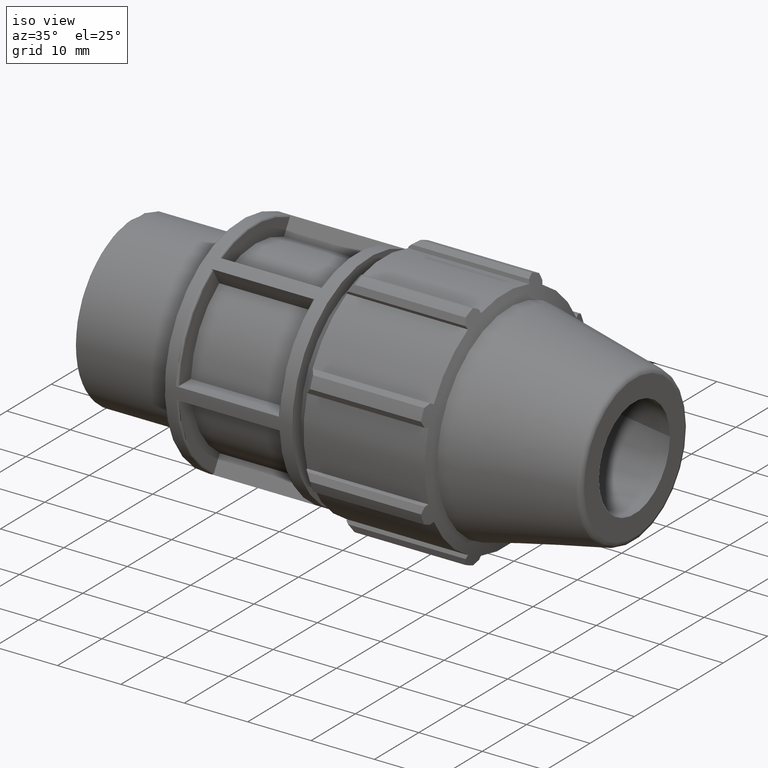
[diagram: clean part render]
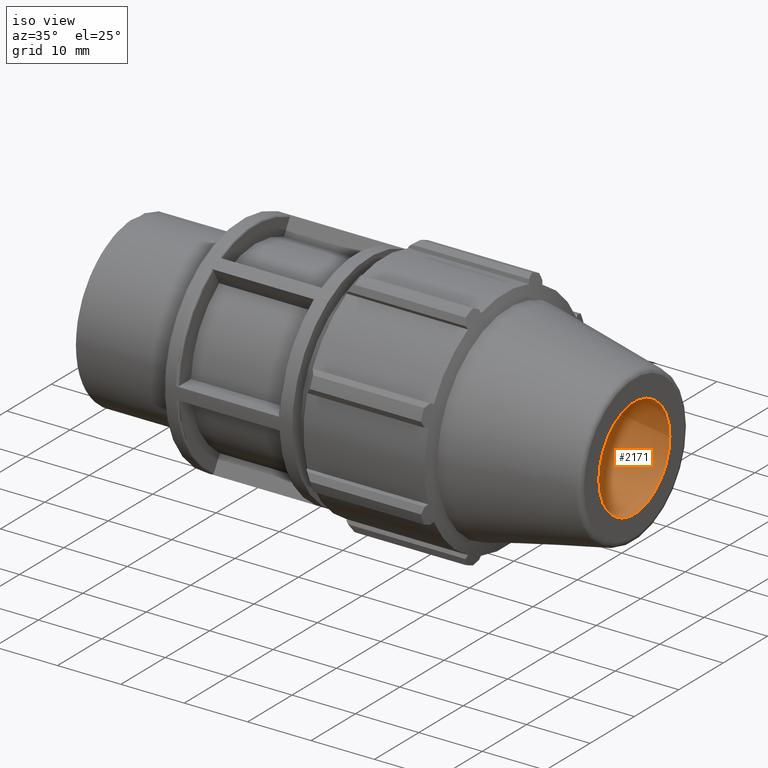
[diagram: same view with one face highlighted and labeled with its STEP entity id]
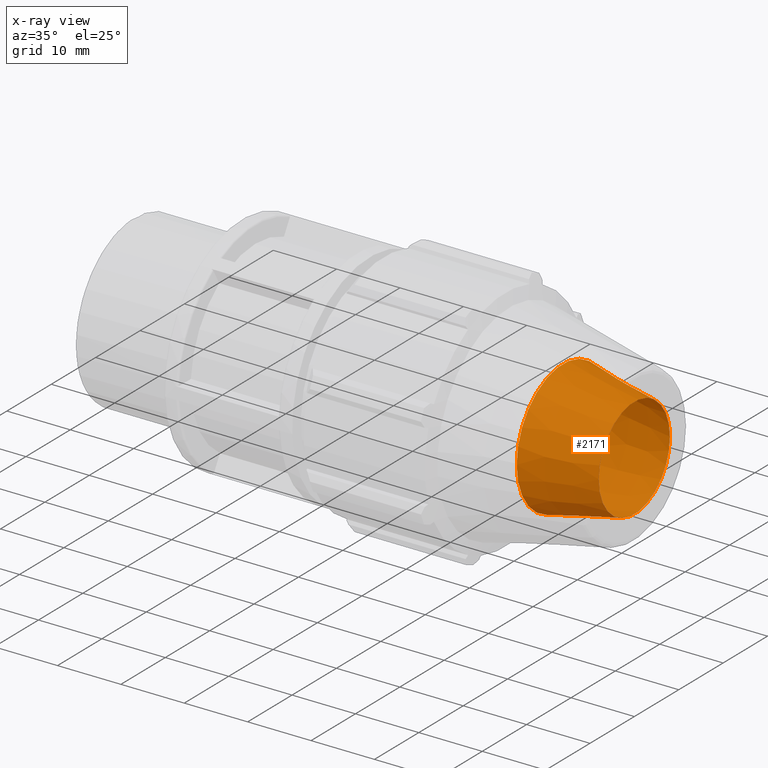
[diagram: x-ray of the same camera — body ghosted, the highlighted face saturated]
A machine part, iso view. The second image highlights one B-rep face of the part: STEP entity #2171.
The next image is the same camera in x-ray: the body ghosted, the highlighted face saturated — about 0% of this face is hidden behind the body in this view.
In plain terms, the highlighted conical surface has half-angle 12 deg.
Its self-contained STEP definition (entity closure, byte-faithful):
#57=CONICAL_SURFACE('',#2384,9.19942631228085,12.);
#484=FACE_BOUND('',#743,.T.);
#601=FACE_OUTER_BOUND('',#742,.T.);
#742=EDGE_LOOP('',(#1920));
#743=EDGE_LOOP('',(#1921));
#814=CIRCLE('',#2316,10.3988526245617);
#835=CIRCLE('',#2359,8.00000000000001);
#1008=VERTEX_POINT('',#3688);
#1037=VERTEX_POINT('',#3816);
#1268=EDGE_CURVE('',#1008,#1008,#814,.T.);
#1329=EDGE_CURVE('',#1037,#1037,#835,.T.);
#1920=ORIENTED_EDGE('',*,*,#1268,.F.);
#1921=ORIENTED_EDGE('',*,*,#1329,.T.);
#2171=ADVANCED_FACE('',(#601,#484),#57,.F.);
#2316=AXIS2_PLACEMENT_3D('',#3689,#2781,#2782);
#2359=AXIS2_PLACEMENT_3D('',#3817,#2899,#2900);
#2384=AXIS2_PLACEMENT_3D('',#3846,#2951,#2952);
#2781=DIRECTION('center_axis',(1.,0.,0.));
#2782=DIRECTION('ref_axis',(0.,0.,-1.));
#2899=DIRECTION('center_axis',(1.,0.,0.));
#2900=DIRECTION('ref_axis',(0.,0.,-1.));
#2951=DIRECTION('center_axis',(-1.,0.,0.));
#2952=DIRECTION('ref_axis',(0.,1.,0.));
#3688=CARTESIAN_POINT('',(67.7142857142857,10.3988526245617,0.));
#3689=CARTESIAN_POINT('Origin',(67.7142857142857,0.,0.));
#3816=CARTESIAN_POINT('',(79.,8.00000000000001,0.));
#3817=CARTESIAN_POINT('Origin',(79.,0.,0.));
#3846=CARTESIAN_POINT('Origin',(73.3571428571429,0.,0.));